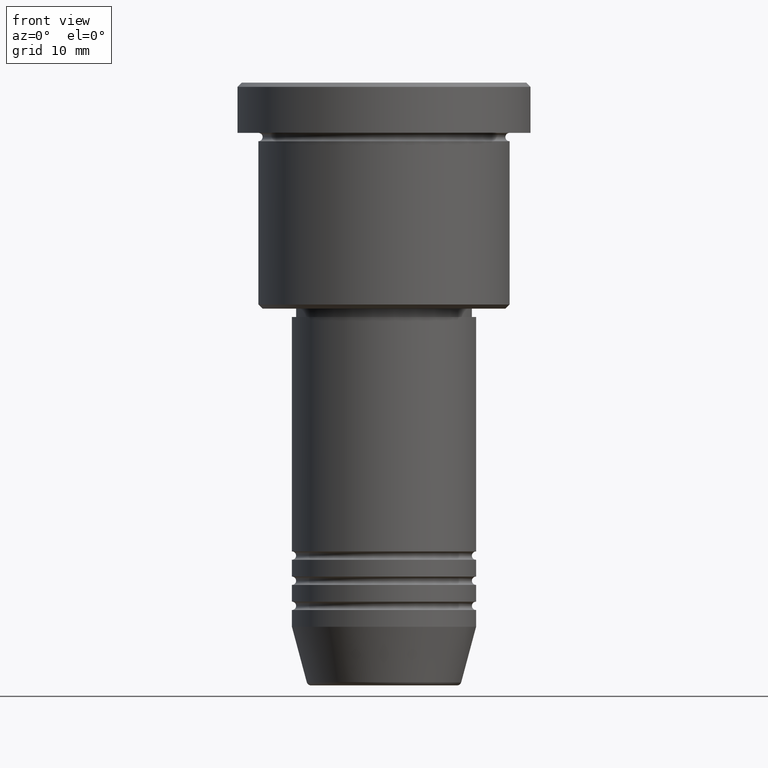
[diagram: clean part render]
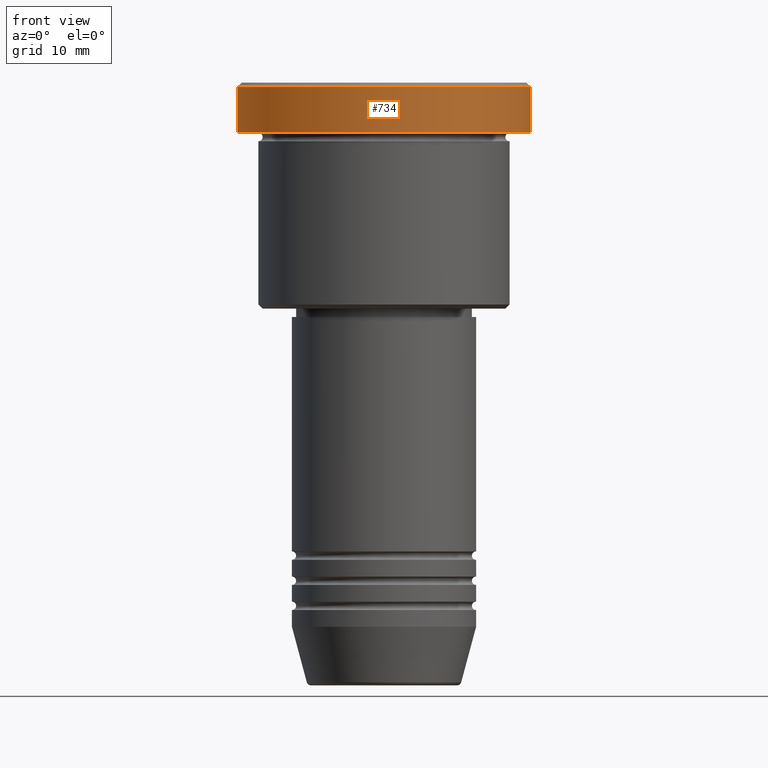
[diagram: same view with one face highlighted and labeled with its STEP entity id]
A machine part, front view. The second image highlights one B-rep face of the part: STEP entity #734.
In plain terms, the highlighted cylindrical surface (partial cylindrical patch) has radius 17.5 mm, axis along (-0, -0, 1).
Its self-contained STEP definition (entity closure, byte-faithful):
#35 = VERTEX_POINT ( 'NONE', #965 ) ;
#50 = DIRECTION ( 'NONE',  ( 1.000000000000000000, 0.000000000000000000, 0.000000000000000000 ) ) ;
#52 = DIRECTION ( 'NONE',  ( 1.000000000000000000, 0.000000000000000000, 0.000000000000000000 ) ) ;
#105 = VERTEX_POINT ( 'NONE', #441 ) ;
#128 = VECTOR ( 'NONE', #765, 1000.000000000000000 ) ;
#144 = CYLINDRICAL_SURFACE ( 'NONE', #519, 17.50000000000000000 ) ;
#150 = FACE_OUTER_BOUND ( 'NONE', #768, .T. ) ;
#210 = CIRCLE ( 'NONE', #879, 17.50000000000000000 ) ;
#277 = CARTESIAN_POINT ( 'NONE',  ( -17.50000000000000000, 2.143131898507868248E-15, -0.5000000000000143219 ) ) ;
#343 = DIRECTION ( 'NONE',  ( 1.000000000000000000, 0.000000000000000000, 0.000000000000000000 ) ) ;
#379 = CARTESIAN_POINT ( 'NONE',  ( 0.000000000000000000, 0.000000000000000000, -0.5000000000000143219 ) ) ;
#400 = EDGE_CURVE ( 'NONE', #105, #850, #753, .T. ) ;
#408 = CARTESIAN_POINT ( 'NONE',  ( -17.50000000000000000, 2.143131898507868248E-15, 0.000000000000000000 ) ) ;
#416 = ORIENTED_EDGE ( 'NONE', *, *, #994, .T. ) ;
#433 = CARTESIAN_POINT ( 'NONE',  ( 0.000000000000000000, 0.000000000000000000, 0.000000000000000000 ) ) ;
#438 = DIRECTION ( 'NONE',  ( -0.000000000000000000, -0.000000000000000000, 1.000000000000000000 ) ) ;
#441 = CARTESIAN_POINT ( 'NONE',  ( -17.50000000000000000, 2.143131898507868248E-15, -5.999999999999995559 ) ) ;
#510 = ORIENTED_EDGE ( 'NONE', *, *, #400, .F. ) ;
#514 = LINE ( 'NONE', #801, #668 ) ;
#519 = AXIS2_PLACEMENT_3D ( 'NONE', #433, #438, #52 ) ;
#581 = VERTEX_POINT ( 'NONE', #646 ) ;
#604 = DIRECTION ( 'NONE',  ( 0.000000000000000000, 0.000000000000000000, -1.000000000000000000 ) ) ;
#646 = CARTESIAN_POINT ( 'NONE',  ( 17.50000000000000000, 0.000000000000000000, -0.5000000000000143219 ) ) ;
#650 = DIRECTION ( 'NONE',  ( -0.000000000000000000, -0.000000000000000000, 1.000000000000000000 ) ) ;
#668 = VECTOR ( 'NONE', #1172, 1000.000000000000000 ) ;
#708 = ORIENTED_EDGE ( 'NONE', *, *, #1067, .T. ) ;
#734 = ADVANCED_FACE ( 'NONE', ( #150 ), #144, .T. ) ;
#753 = LINE ( 'NONE', #408, #128 ) ;
#765 = DIRECTION ( 'NONE',  ( -0.000000000000000000, -0.000000000000000000, 1.000000000000000000 ) ) ;
#768 = EDGE_LOOP ( 'NONE', ( #510, #416, #1037, #708 ) ) ;
#801 = CARTESIAN_POINT ( 'NONE',  ( 17.50000000000000000, 0.000000000000000000, 0.000000000000000000 ) ) ;
#850 = VERTEX_POINT ( 'NONE', #277 ) ;
#859 = AXIS2_PLACEMENT_3D ( 'NONE', #1016, #650, #50 ) ;
#879 = AXIS2_PLACEMENT_3D ( 'NONE', #379, #604, #343 ) ;
#965 = CARTESIAN_POINT ( 'NONE',  ( 17.50000000000000000, 0.000000000000000000, -5.999999999999995559 ) ) ;
#994 = EDGE_CURVE ( 'NONE', #105, #35, #1168, .T. ) ;
#1016 = CARTESIAN_POINT ( 'NONE',  ( 0.000000000000000000, 0.000000000000000000, -5.999999999999995559 ) ) ;
#1037 = ORIENTED_EDGE ( 'NONE', *, *, #1076, .T. ) ;
#1067 = EDGE_CURVE ( 'NONE', #581, #850, #210, .T. ) ;
#1076 = EDGE_CURVE ( 'NONE', #35, #581, #514, .T. ) ;
#1168 = CIRCLE ( 'NONE', #859, 17.50000000000000000 ) ;
#1172 = DIRECTION ( 'NONE',  ( -0.000000000000000000, -0.000000000000000000, 1.000000000000000000 ) ) ;